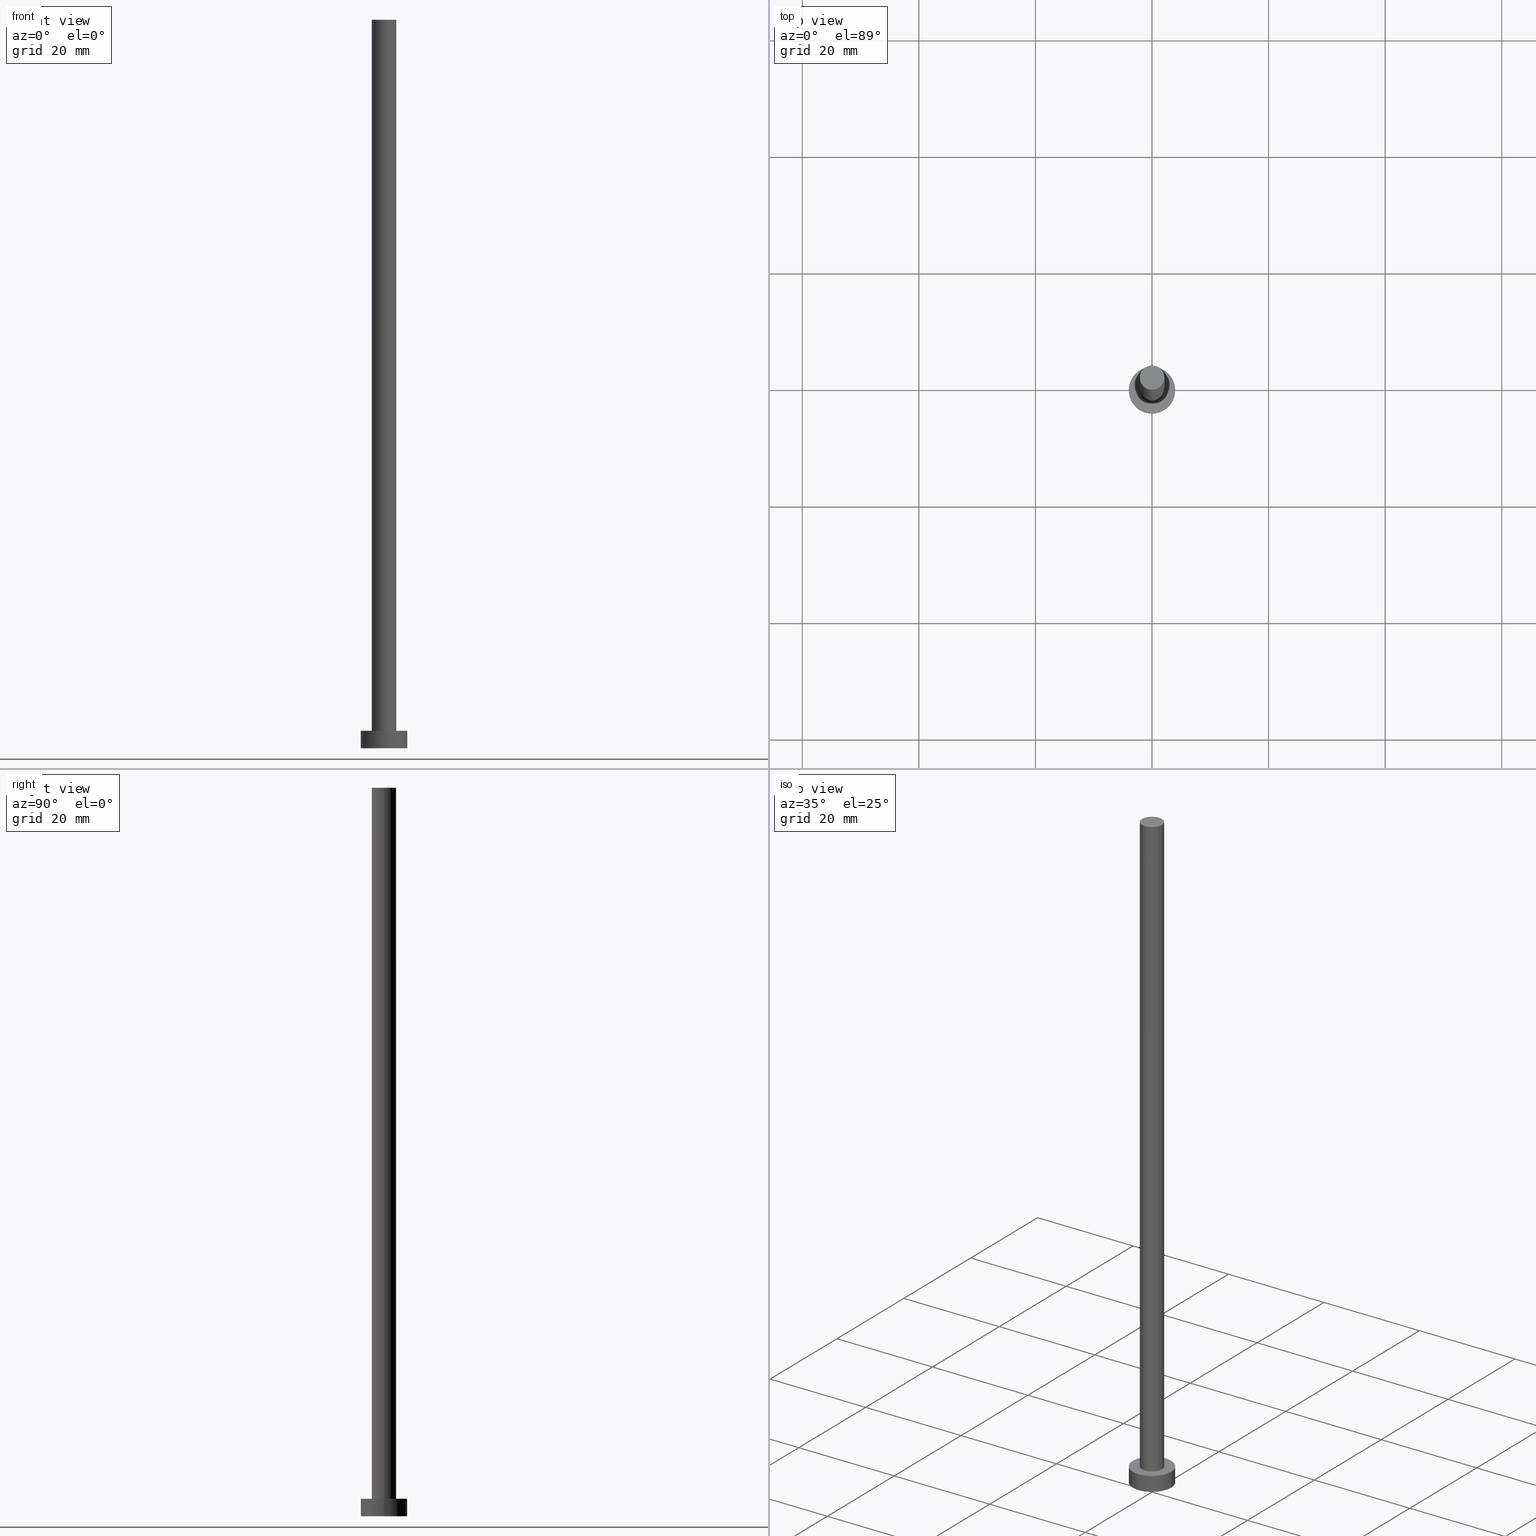
[diagram: canonical four-view strip — front | top / right | iso, engineering-drawing reading convention]
A machine part, canonical four-view strip (front | top / right | iso — engineering-drawing reading convention). The complete STEP part file that produces these views, byte-faithful:
ISO-10303-21;
HEADER;
FILE_DESCRIPTION (( 'STEP AP203' ),
    '1' );
FILE_NAME ('ead1.STEP',
    '2023-02-13T16:08:53',
    ( '' ),
    ( '' ),
    'SwSTEP 2.0',
    'SolidWorks 2019',
    '' );
FILE_SCHEMA (( 'CONFIG_CONTROL_DESIGN' ));
ENDSEC;

DATA;
#1 = CYLINDRICAL_SURFACE ( 'NONE', #7, 2.100000000000000089 ) ;
#2 = PLANE ( 'NONE',  #128 ) ;
#3 = AXIS2_PLACEMENT_3D ( 'NONE', #178, #231, #214 ) ;
#4 = EDGE_LOOP ( 'NONE', ( #82, #171, #160, #223 ) ) ;
#5 = EDGE_LOOP ( 'NONE', ( #116, #90 ) ) ;
#6 = ORIENTED_EDGE ( 'NONE', *, *, #27, .F. ) ;
#7 = AXIS2_PLACEMENT_3D ( 'NONE', #78, #124, #121 ) ;
#8 = DIRECTION ( 'NONE',  ( 0.000000000000000000, 0.000000000000000000, 1.000000000000000000 ) ) ;
#9 = APPROVAL_STATUS ( 'not_yet_approved' ) ;
#10 = ORIENTED_EDGE ( 'NONE', *, *, #238, .F. ) ;
#11 = CC_DESIGN_DATE_AND_TIME_ASSIGNMENT ( #134, #71, ( #174 ) ) ;
#12 = DATE_AND_TIME ( #209, #252 ) ;
#13 = CIRCLE ( 'NONE', #233, 2.100000000000000089 ) ;
#14 = CARTESIAN_POINT ( 'NONE',  ( 0.000000000000000000, 0.000000000000000000, 0.000000000000000000 ) ) ;
#15 = APPROVAL ( #189, 'NEUR�EN�' ) ;
#16 = CARTESIAN_POINT ( 'NONE',  ( 0.000000000000000000, 0.000000000000000000, 125.0000000000000000 ) ) ;
#17 = VERTEX_POINT ( 'NONE', #175 ) ;
#18 = DIRECTION ( 'NONE',  ( 0.000000000000000000, 0.000000000000000000, 1.000000000000000000 ) ) ;
#19 = DIRECTION ( 'NONE',  ( -0.000000000000000000, -0.000000000000000000, -1.000000000000000000 ) ) ;
#20 = MANIFOLD_SOLID_BREP ( 'P�idat vysunut�m3', #194 ) ;
#21 = APPLICATION_CONTEXT ( 'configuration controlled 3d designs of mechanical parts and assemblies' ) ;
#22 = DIRECTION ( 'NONE',  ( 0.000000000000000000, 0.000000000000000000, 1.000000000000000000 ) ) ;
#23 =( GEOMETRIC_REPRESENTATION_CONTEXT ( 3 ) GLOBAL_UNCERTAINTY_ASSIGNED_CONTEXT ( ( #94 ) ) GLOBAL_UNIT_ASSIGNED_CONTEXT ( ( #218, #129, #89 ) ) REPRESENTATION_CONTEXT ( 'NONE', 'WORKASPACE' ) );
#24 = APPROVAL_ROLE ( '' ) ;
#25 = APPROVAL_DATE_TIME ( #166, #15 ) ;
#26 = APPROVAL_ROLE ( '' ) ;
#27 = EDGE_CURVE ( 'NONE', #235, #162, #13, .T. ) ;
#28 = ORIENTED_EDGE ( 'NONE', *, *, #172, .T. ) ;
#29 = DIRECTION ( 'NONE',  ( 0.000000000000000000, 0.000000000000000000, 1.000000000000000000 ) ) ;
#30 = DIRECTION ( 'NONE',  ( 1.000000000000000000, 0.000000000000000000, -0.000000000000000000 ) ) ;
#31 = CARTESIAN_POINT ( 'NONE',  ( -2.100000000000000089, 0.000000000000000000, 125.0000000000000000 ) ) ;
#32 = DIRECTION ( 'NONE',  ( 0.000000000000000000, 0.000000000000000000, 1.000000000000000000 ) ) ;
#33 = ADVANCED_FACE ( 'NONE', ( #51 ), #118, .T. ) ;
#34 = DIRECTION ( 'NONE',  ( -0.000000000000000000, -0.000000000000000000, -1.000000000000000000 ) ) ;
#35 = FACE_OUTER_BOUND ( 'NONE', #60, .T. ) ;
#36 = EDGE_LOOP ( 'NONE', ( #64, #144, #164, #243 ) ) ;
#37 = CC_DESIGN_PERSON_AND_ORGANIZATION_ASSIGNMENT ( #136, #42, ( #174 ) ) ;
#38 = AXIS2_PLACEMENT_3D ( 'NONE', #195, #248, #73 ) ;
#39 = CC_DESIGN_PERSON_AND_ORGANIZATION_ASSIGNMENT ( #150, #206, ( #133 ) ) ;
#40 = PERSON_AND_ORGANIZATION ( #43, #131 ) ;
#41 = APPROVAL_PERSON_ORGANIZATION ( #205, #15, #95 ) ;
#42 = PERSON_AND_ORGANIZATION_ROLE ( 'classification_officer' ) ;
#43 = PERSON ( 'NEUR�EN�', 'NEUR�EN�', 'NEUR�EN�', ('NEUR�EN�'), ('NEUR�EN�'), ('NEUR�EN�') ) ;
#44 = MECHANICAL_CONTEXT ( 'NONE', #253, 'mechanical' ) ;
#45 = ADVANCED_FACE ( 'NONE', ( #142 ), #226, .T. ) ;
#46 = COORDINATED_UNIVERSAL_TIME_OFFSET ( 1, 0, .AHEAD. ) ;
#47 = VERTEX_POINT ( 'NONE', #254 ) ;
#48 = SECURITY_CLASSIFICATION_LEVEL ( 'unclassified' ) ;
#49 = ORIENTED_EDGE ( 'NONE', *, *, #77, .T. ) ;
#50 = CARTESIAN_POINT ( 'NONE',  ( 0.000000000000000000, 0.000000000000000000, 125.0000000000000000 ) ) ;
#51 = FACE_OUTER_BOUND ( 'NONE', #145, .T. ) ;
#52 = LINE ( 'NONE', #197, #75 ) ;
#53 = CC_DESIGN_PERSON_AND_ORGANIZATION_ASSIGNMENT ( #70, #152, ( #61 ) ) ;
#54 = DIRECTION ( 'NONE',  ( 0.000000000000000000, 0.000000000000000000, 1.000000000000000000 ) ) ;
#55 = CARTESIAN_POINT ( 'NONE',  ( -2.100000000000000089, 0.000000000000000000, 125.0000000000000000 ) ) ;
#56 = DIRECTION ( 'NONE',  ( -0.000000000000000000, -0.000000000000000000, -1.000000000000000000 ) ) ;
#57 = ADVANCED_BREP_SHAPE_REPRESENTATION ( 'ead1', ( #20, #170 ), #23 ) ;
#58 = VERTEX_POINT ( 'NONE', #55 ) ;
#59 = EDGE_CURVE ( 'NONE', #58, #126, #86, .T. ) ;
#60 = EDGE_LOOP ( 'NONE', ( #92, #210 ) ) ;
#61 = PRODUCT_DEFINITION_FORMATION_WITH_SPECIFIED_SOURCE ( 'LIBOVOLN�', '', #133, .NOT_KNOWN. ) ;
#62 = CARTESIAN_POINT ( 'NONE',  ( 4.000000000000000000, 4.898587196589412829E-16, 3.000000000000000000 ) ) ;
#63 = VERTEX_POINT ( 'NONE', #105 ) ;
#64 = ORIENTED_EDGE ( 'NONE', *, *, #93, .F. ) ;
#65 = LOCAL_TIME ( 17, 8, 53.00000000000000000, #154 ) ;
#66 = ORIENTED_EDGE ( 'NONE', *, *, #77, .F. ) ;
#67 = PERSON_AND_ORGANIZATION ( #43, #131 ) ;
#68 = AXIS2_PLACEMENT_3D ( 'NONE', #158, #139, #192 ) ;
#69 = PRODUCT_DEFINITION ( 'NEZN�M�', '', #61, #135 ) ;
#70 = PERSON_AND_ORGANIZATION ( #43, #131 ) ;
#71 = DATE_TIME_ROLE ( 'classification_date' ) ;
#72 = EDGE_CURVE ( 'NONE', #58, #235, #100, .T. ) ;
#73 = DIRECTION ( 'NONE',  ( 1.000000000000000000, 0.000000000000000000, 0.000000000000000000 ) ) ;
#74 = DIRECTION ( 'NONE',  ( 1.000000000000000000, 0.000000000000000000, 0.000000000000000000 ) ) ;
#75 = VECTOR ( 'NONE', #34, 1000.000000000000000 ) ;
#76 = DIRECTION ( 'NONE',  ( -1.000000000000000000, 0.000000000000000000, 0.000000000000000000 ) ) ;
#77 = EDGE_CURVE ( 'NONE', #162, #235, #224, .T. ) ;
#78 = CARTESIAN_POINT ( 'NONE',  ( 0.000000000000000000, 0.000000000000000000, 125.0000000000000000 ) ) ;
#79 = DIRECTION ( 'NONE',  ( 1.000000000000000000, 0.000000000000000000, 0.000000000000000000 ) ) ;
#80 = VECTOR ( 'NONE', #159, 1000.000000000000000 ) ;
#81 = CC_DESIGN_APPROVAL ( #15, ( #69 ) ) ;
#82 = ORIENTED_EDGE ( 'NONE', *, *, #146, .F. ) ;
#83 = DIRECTION ( 'NONE',  ( 1.000000000000000000, 0.000000000000000000, 0.000000000000000000 ) ) ;
#84 = CARTESIAN_POINT ( 'NONE',  ( 0.000000000000000000, 0.000000000000000000, 3.000000000000000000 ) ) ;
#85 = EDGE_LOOP ( 'NONE', ( #138, #10, #167, #28 ) ) ;
#86 = CIRCLE ( 'NONE', #68, 2.100000000000000089 ) ;
#87 = PLANE ( 'NONE',  #201 ) ;
#88 = ADVANCED_FACE ( 'NONE', ( #229 ), #141, .T. ) ;
#89 =( NAMED_UNIT ( * ) SI_UNIT ( $, .STERADIAN. ) SOLID_ANGLE_UNIT ( ) );
#90 = ORIENTED_EDGE ( 'NONE', *, *, #102, .T. ) ;
#91 = COORDINATED_UNIVERSAL_TIME_OFFSET ( 1, 0, .AHEAD. ) ;
#92 = ORIENTED_EDGE ( 'NONE', *, *, #172, .F. ) ;
#93 = EDGE_CURVE ( 'NONE', #47, #186, #177, .T. ) ;
#94 = UNCERTAINTY_MEASURE_WITH_UNIT (LENGTH_MEASURE( 1.000000000000000082E-05 ), #218, 'distance_accuracy_value', 'NONE');
#95 = APPROVAL_ROLE ( '' ) ;
#96 = DATE_AND_TIME ( #148, #237 ) ;
#97 = PERSON_AND_ORGANIZATION ( #43, #131 ) ;
#98 = AXIS2_PLACEMENT_3D ( 'NONE', #101, #234, #123 ) ;
#99 = DIRECTION ( 'NONE',  ( 0.000000000000000000, 0.000000000000000000, 1.000000000000000000 ) ) ;
#100 = LINE ( 'NONE', #31, #103 ) ;
#101 = CARTESIAN_POINT ( 'NONE',  ( 0.000000000000000000, 0.000000000000000000, 125.0000000000000000 ) ) ;
#102 = EDGE_CURVE ( 'NONE', #126, #58, #207, .T. ) ;
#103 = VECTOR ( 'NONE', #19, 1000.000000000000000 ) ;
#104 = CARTESIAN_POINT ( 'NONE',  ( 0.000000000000000000, 0.000000000000000000, 3.000000000000000000 ) ) ;
#105 = CARTESIAN_POINT ( 'NONE',  ( 4.000000000000000000, 4.898587196589412829E-16, 0.000000000000000000 ) ) ;
#106 = ADVANCED_FACE ( 'NONE', ( #180 ), #179, .T. ) ;
#107 = AXIS2_PLACEMENT_3D ( 'NONE', #14, #130, #83 ) ;
#108 = LINE ( 'NONE', #62, #127 ) ;
#109 = DIRECTION ( 'NONE',  ( 0.000000000000000000, 0.000000000000000000, 1.000000000000000000 ) ) ;
#110 = COORDINATED_UNIVERSAL_TIME_OFFSET ( 1, 0, .AHEAD. ) ;
#111 = COORDINATED_UNIVERSAL_TIME_OFFSET ( 1, 0, .AHEAD. ) ;
#112 = DATE_TIME_ROLE ( 'creation_date' ) ;
#113 = AXIS2_PLACEMENT_3D ( 'NONE', #183, #109, #236 ) ;
#114 = CALENDAR_DATE ( 2023, 13, 2 ) ;
#115 = ORIENTED_EDGE ( 'NONE', *, *, #146, .T. ) ;
#116 = ORIENTED_EDGE ( 'NONE', *, *, #59, .T. ) ;
#117 = CIRCLE ( 'NONE', #107, 4.000000000000000000 ) ;
#118 = CYLINDRICAL_SURFACE ( 'NONE', #98, 2.100000000000000089 ) ;
#119 = APPROVAL_PERSON_ORGANIZATION ( #40, #120, #24 ) ;
#120 = APPROVAL ( #132, 'NEUR�EN�' ) ;
#121 = DIRECTION ( 'NONE',  ( -1.000000000000000000, 0.000000000000000000, 0.000000000000000000 ) ) ;
#122 = SHAPE_DEFINITION_REPRESENTATION ( #227, #57 ) ;
#123 = DIRECTION ( 'NONE',  ( -1.000000000000000000, 0.000000000000000000, 0.000000000000000000 ) ) ;
#124 = DIRECTION ( 'NONE',  ( -0.000000000000000000, -0.000000000000000000, -1.000000000000000000 ) ) ;
#125 = FACE_OUTER_BOUND ( 'NONE', #240, .T. ) ;
#126 = VERTEX_POINT ( 'NONE', #213 ) ;
#127 = VECTOR ( 'NONE', #56, 1000.000000000000000 ) ;
#128 = AXIS2_PLACEMENT_3D ( 'NONE', #84, #22, #198 ) ;
#129 =( NAMED_UNIT ( * ) PLANE_ANGLE_UNIT ( ) SI_UNIT ( $, .RADIAN. ) );
#130 = DIRECTION ( 'NONE',  ( 0.000000000000000000, 0.000000000000000000, 1.000000000000000000 ) ) ;
#131 = ORGANIZATION ( 'NEUR�EN�', 'NEUR�EN�', '' ) ;
#132 = APPROVAL_STATUS ( 'not_yet_approved' ) ;
#133 = PRODUCT ( 'ead1', 'ead1', '', ( #44 ) ) ;
#134 = DATE_AND_TIME ( #245, #65 ) ;
#135 = DESIGN_CONTEXT ( 'detailed design', #21, 'design' ) ;
#136 = PERSON_AND_ORGANIZATION ( #43, #131 ) ;
#137 = ADVANCED_FACE ( 'NONE', ( #255 ), #1, .T. ) ;
#138 = ORIENTED_EDGE ( 'NONE', *, *, #199, .F. ) ;
#139 = DIRECTION ( 'NONE',  ( 0.000000000000000000, 0.000000000000000000, 1.000000000000000000 ) ) ;
#140 = DIRECTION ( 'NONE',  ( 1.000000000000000000, 0.000000000000000000, 0.000000000000000000 ) ) ;
#141 = CYLINDRICAL_SURFACE ( 'NONE', #3, 4.000000000000000000 ) ;
#142 = FACE_OUTER_BOUND ( 'NONE', #85, .T. ) ;
#143 = CARTESIAN_POINT ( 'NONE',  ( 0.000000000000000000, 0.000000000000000000, 3.000000000000000000 ) ) ;
#144 = ORIENTED_EDGE ( 'NONE', *, *, #199, .T. ) ;
#145 = EDGE_LOOP ( 'NONE', ( #187, #115, #49, #242 ) ) ;
#146 = EDGE_CURVE ( 'NONE', #126, #162, #52, .T. ) ;
#147 = FACE_BOUND ( 'NONE', #168, .T. ) ;
#148 = CALENDAR_DATE ( 2023, 13, 2 ) ;
#149 = APPLICATION_PROTOCOL_DEFINITION ( 'international standard', 'config_control_design', 1994, #253 ) ;
#150 = PERSON_AND_ORGANIZATION ( #43, #131 ) ;
#151 = CC_DESIGN_DATE_AND_TIME_ASSIGNMENT ( #12, #112, ( #69 ) ) ;
#152 = PERSON_AND_ORGANIZATION_ROLE ( 'creator' ) ;
#153 = AXIS2_PLACEMENT_3D ( 'NONE', #216, #18, #249 ) ;
#154 = COORDINATED_UNIVERSAL_TIME_OFFSET ( 1, 0, .AHEAD. ) ;
#155 = CARTESIAN_POINT ( 'NONE',  ( -4.000000000000000000, 0.000000000000000000, 3.000000000000000000 ) ) ;
#156 = EDGE_CURVE ( 'NONE', #186, #17, #191, .T. ) ;
#157 = AXIS2_PLACEMENT_3D ( 'NONE', #50, #99, #140 ) ;
#158 = CARTESIAN_POINT ( 'NONE',  ( 0.000000000000000000, 0.000000000000000000, 125.0000000000000000 ) ) ;
#159 = DIRECTION ( 'NONE',  ( -0.000000000000000000, -0.000000000000000000, -1.000000000000000000 ) ) ;
#160 = ORIENTED_EDGE ( 'NONE', *, *, #72, .T. ) ;
#161 = AXIS2_PLACEMENT_3D ( 'NONE', #104, #232, #76 ) ;
#162 = VERTEX_POINT ( 'NONE', #215 ) ;
#163 = CALENDAR_DATE ( 2023, 13, 2 ) ;
#164 = ORIENTED_EDGE ( 'NONE', *, *, #188, .T. ) ;
#165 = DIRECTION ( 'NONE',  ( 1.000000000000000000, 0.000000000000000000, 0.000000000000000000 ) ) ;
#166 = DATE_AND_TIME ( #114, #190 ) ;
#167 = ORIENTED_EDGE ( 'NONE', *, *, #156, .T. ) ;
#168 = EDGE_LOOP ( 'NONE', ( #6, #66 ) ) ;
#169 = PERSON_AND_ORGANIZATION_ROLE ( 'design_supplier' ) ;
#170 = AXIS2_PLACEMENT_3D ( 'NONE', #222, #8, #165 ) ;
#171 = ORIENTED_EDGE ( 'NONE', *, *, #59, .F. ) ;
#172 = EDGE_CURVE ( 'NONE', #17, #63, #219, .T. ) ;
#173 = CARTESIAN_POINT ( 'NONE',  ( 0.000000000000000000, 0.000000000000000000, 0.000000000000000000 ) ) ;
#174 = SECURITY_CLASSIFICATION ( '', '', #48 ) ;
#175 = CARTESIAN_POINT ( 'NONE',  ( -4.000000000000000000, 0.000000000000000000, 0.000000000000000000 ) ) ;
#176 = LOCAL_TIME ( 17, 8, 53.00000000000000000, #110 ) ;
#177 = CIRCLE ( 'NONE', #153, 4.000000000000000000 ) ;
#178 = CARTESIAN_POINT ( 'NONE',  ( 0.000000000000000000, 0.000000000000000000, 3.000000000000000000 ) ) ;
#179 = PLANE ( 'NONE',  #251 ) ;
#180 = FACE_OUTER_BOUND ( 'NONE', #5, .T. ) ;
#181 = DIRECTION ( 'NONE',  ( 0.000000000000000000, 0.000000000000000000, 1.000000000000000000 ) ) ;
#182 = CC_DESIGN_PERSON_AND_ORGANIZATION_ASSIGNMENT ( #225, #169, ( #61 ) ) ;
#183 = CARTESIAN_POINT ( 'NONE',  ( 0.000000000000000000, 0.000000000000000000, 3.000000000000000000 ) ) ;
#184 = CIRCLE ( 'NONE', #113, 4.000000000000000000 ) ;
#185 = APPLICATION_PROTOCOL_DEFINITION ( 'international standard', 'config_control_design', 1994, #21 ) ;
#186 = VERTEX_POINT ( 'NONE', #155 ) ;
#187 = ORIENTED_EDGE ( 'NONE', *, *, #102, .F. ) ;
#188 = EDGE_CURVE ( 'NONE', #63, #17, #117, .T. ) ;
#189 = APPROVAL_STATUS ( 'not_yet_approved' ) ;
#190 = LOCAL_TIME ( 17, 8, 53.00000000000000000, #111 ) ;
#191 = LINE ( 'NONE', #193, #80 ) ;
#192 = DIRECTION ( 'NONE',  ( 1.000000000000000000, 0.000000000000000000, 0.000000000000000000 ) ) ;
#193 = CARTESIAN_POINT ( 'NONE',  ( -4.000000000000000000, 0.000000000000000000, 3.000000000000000000 ) ) ;
#194 = CLOSED_SHELL ( 'NONE', ( #33, #88, #45, #230, #196, #137, #106 ) ) ;
#195 = CARTESIAN_POINT ( 'NONE',  ( 0.000000000000000000, 0.000000000000000000, 3.000000000000000000 ) ) ;
#196 = ADVANCED_FACE ( 'NONE', ( #35 ), #87, .F. ) ;
#197 = CARTESIAN_POINT ( 'NONE',  ( 2.100000000000000089, 2.571758278209441464E-16, 125.0000000000000000 ) ) ;
#198 = DIRECTION ( 'NONE',  ( 1.000000000000000000, 0.000000000000000000, -0.000000000000000000 ) ) ;
#199 = EDGE_CURVE ( 'NONE', #47, #63, #108, .T. ) ;
#200 = CARTESIAN_POINT ( 'NONE',  ( -2.100000000000000089, 0.000000000000000000, 3.000000000000000000 ) ) ;
#201 = AXIS2_PLACEMENT_3D ( 'NONE', #203, #181, #239 ) ;
#202 = CC_DESIGN_SECURITY_CLASSIFICATION ( #174, ( #61 ) ) ;
#203 = CARTESIAN_POINT ( 'NONE',  ( 0.000000000000000000, 0.000000000000000000, 0.000000000000000000 ) ) ;
#204 = PRODUCT_RELATED_PRODUCT_CATEGORY ( 'detail', '', ( #133 ) ) ;
#205 = PERSON_AND_ORGANIZATION ( #43, #131 ) ;
#206 = PERSON_AND_ORGANIZATION_ROLE ( 'design_owner' ) ;
#207 = CIRCLE ( 'NONE', #157, 2.100000000000000089 ) ;
#208 = ORIENTED_EDGE ( 'NONE', *, *, #93, .T. ) ;
#209 = CALENDAR_DATE ( 2023, 13, 2 ) ;
#210 = ORIENTED_EDGE ( 'NONE', *, *, #188, .F. ) ;
#211 = APPROVAL_PERSON_ORGANIZATION ( #97, #221, #26 ) ;
#212 = ORIENTED_EDGE ( 'NONE', *, *, #238, .T. ) ;
#213 = CARTESIAN_POINT ( 'NONE',  ( 2.100000000000000089, 2.571758278209441464E-16, 125.0000000000000000 ) ) ;
#214 = DIRECTION ( 'NONE',  ( -1.000000000000000000, 0.000000000000000000, 0.000000000000000000 ) ) ;
#215 = CARTESIAN_POINT ( 'NONE',  ( 2.100000000000000089, 2.571758278209441464E-16, 3.000000000000000000 ) ) ;
#216 = CARTESIAN_POINT ( 'NONE',  ( 0.000000000000000000, 0.000000000000000000, 3.000000000000000000 ) ) ;
#217 = CC_DESIGN_APPROVAL ( #120, ( #174 ) ) ;
#218 =( LENGTH_UNIT ( ) NAMED_UNIT ( * ) SI_UNIT ( .MILLI., .METRE. ) );
#219 = CIRCLE ( 'NONE', #220, 4.000000000000000000 ) ;
#220 = AXIS2_PLACEMENT_3D ( 'NONE', #173, #32, #79 ) ;
#221 = APPROVAL ( #9, 'NEUR�EN�' ) ;
#222 = CARTESIAN_POINT ( 'NONE',  ( 0.000000000000000000, 0.000000000000000000, 0.000000000000000000 ) ) ;
#223 = ORIENTED_EDGE ( 'NONE', *, *, #27, .T. ) ;
#224 = CIRCLE ( 'NONE', #38, 2.100000000000000089 ) ;
#225 = PERSON_AND_ORGANIZATION ( #43, #131 ) ;
#226 = CYLINDRICAL_SURFACE ( 'NONE', #161, 4.000000000000000000 ) ;
#227 = PRODUCT_DEFINITION_SHAPE ( 'NONE', 'NONE',  #69 ) ;
#228 = APPROVAL_DATE_TIME ( #247, #120 ) ;
#229 = FACE_OUTER_BOUND ( 'NONE', #36, .T. ) ;
#230 = ADVANCED_FACE ( 'NONE', ( #147, #125 ), #2, .T. ) ;
#231 = DIRECTION ( 'NONE',  ( -0.000000000000000000, -0.000000000000000000, -1.000000000000000000 ) ) ;
#232 = DIRECTION ( 'NONE',  ( -0.000000000000000000, -0.000000000000000000, -1.000000000000000000 ) ) ;
#233 = AXIS2_PLACEMENT_3D ( 'NONE', #143, #29, #74 ) ;
#234 = DIRECTION ( 'NONE',  ( -0.000000000000000000, -0.000000000000000000, -1.000000000000000000 ) ) ;
#235 = VERTEX_POINT ( 'NONE', #200 ) ;
#236 = DIRECTION ( 'NONE',  ( 1.000000000000000000, 0.000000000000000000, 0.000000000000000000 ) ) ;
#237 = LOCAL_TIME ( 17, 8, 53.00000000000000000, #91 ) ;
#238 = EDGE_CURVE ( 'NONE', #186, #47, #184, .T. ) ;
#239 = DIRECTION ( 'NONE',  ( 1.000000000000000000, 0.000000000000000000, -0.000000000000000000 ) ) ;
#240 = EDGE_LOOP ( 'NONE', ( #212, #208 ) ) ;
#241 = PERSON_AND_ORGANIZATION_ROLE ( 'creator' ) ;
#242 = ORIENTED_EDGE ( 'NONE', *, *, #72, .F. ) ;
#243 = ORIENTED_EDGE ( 'NONE', *, *, #156, .F. ) ;
#244 = APPROVAL_DATE_TIME ( #96, #221 ) ;
#245 = CALENDAR_DATE ( 2023, 13, 2 ) ;
#246 = CC_DESIGN_APPROVAL ( #221, ( #61 ) ) ;
#247 = DATE_AND_TIME ( #163, #176 ) ;
#248 = DIRECTION ( 'NONE',  ( 0.000000000000000000, 0.000000000000000000, 1.000000000000000000 ) ) ;
#249 = DIRECTION ( 'NONE',  ( 1.000000000000000000, 0.000000000000000000, 0.000000000000000000 ) ) ;
#250 = CC_DESIGN_PERSON_AND_ORGANIZATION_ASSIGNMENT ( #67, #241, ( #69 ) ) ;
#251 = AXIS2_PLACEMENT_3D ( 'NONE', #16, #54, #30 ) ;
#252 = LOCAL_TIME ( 17, 8, 53.00000000000000000, #46 ) ;
#253 = APPLICATION_CONTEXT ( 'configuration controlled 3d designs of mechanical parts and assemblies' ) ;
#254 = CARTESIAN_POINT ( 'NONE',  ( 4.000000000000000000, 4.898587196589412829E-16, 3.000000000000000000 ) ) ;
#255 = FACE_OUTER_BOUND ( 'NONE', #4, .T. ) ;
ENDSEC;
END-ISO-10303-21;
